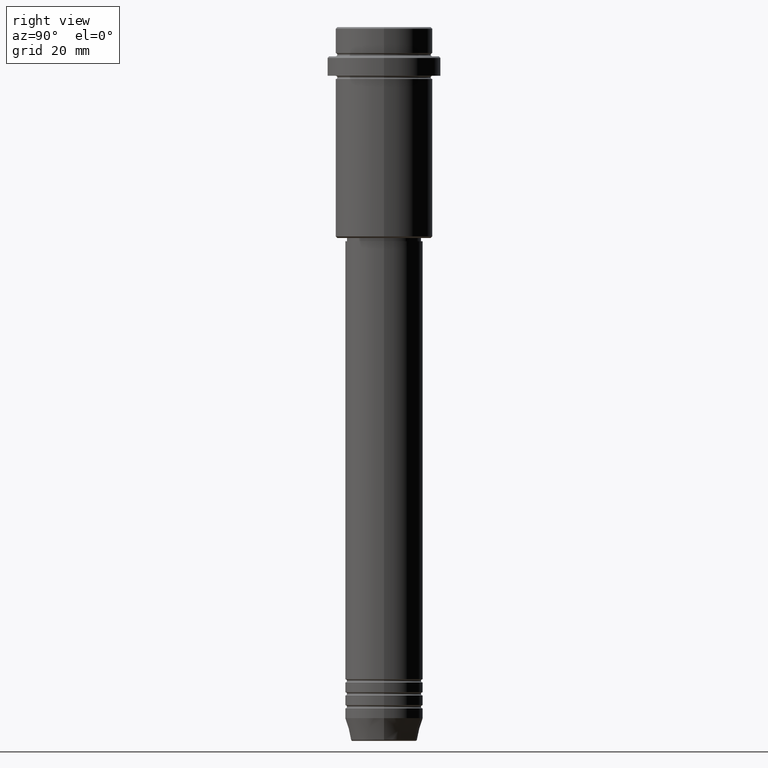
[diagram: clean part render]
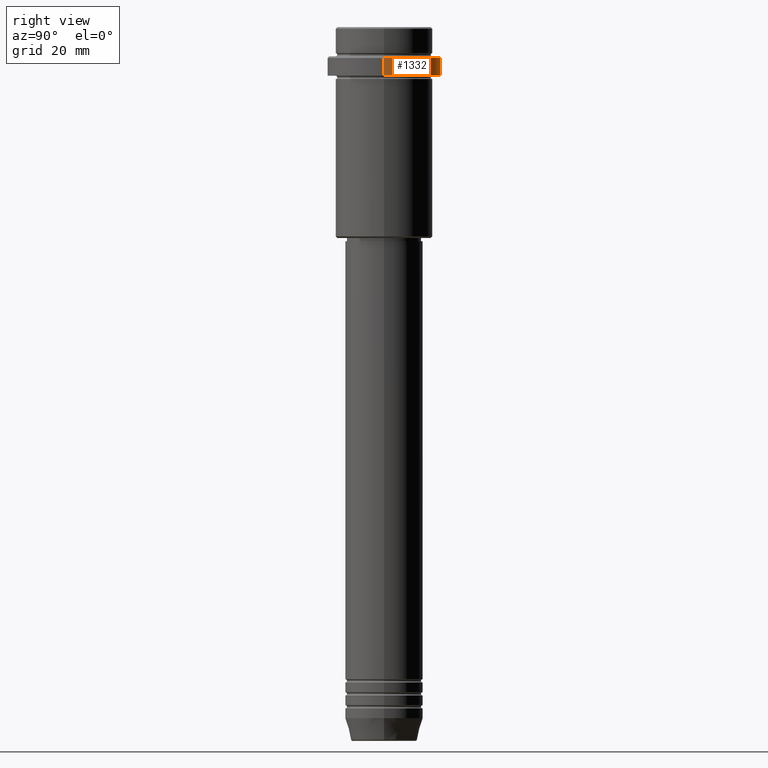
[diagram: same view with one face highlighted and labeled with its STEP entity id]
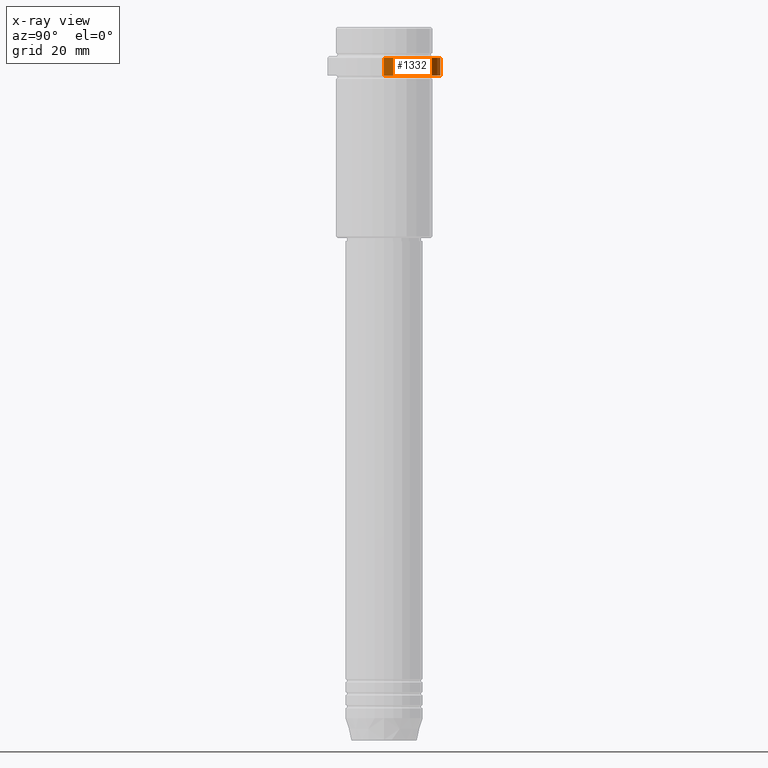
[diagram: x-ray of the same camera — body ghosted, the highlighted face saturated]
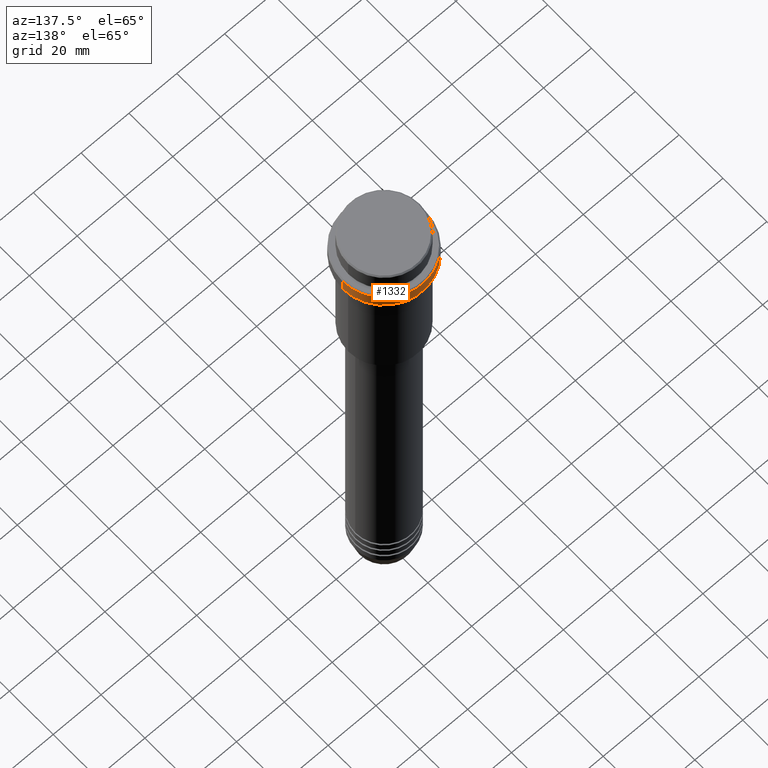
[diagram: same view with one face highlighted and labeled with its STEP entity id]
A machine part, right view. The second image highlights one B-rep face of the part: STEP entity #1332.
The next image is the same camera in x-ray: the body ghosted, the highlighted face saturated — about 0% of this face is hidden behind the body in this view.
A second angle (auxiliary view) of the same face is appended — the face is thin or edge-on in the first view.
In plain terms, the highlighted cylindrical surface (partial cylindrical patch) has radius 17.5 mm, axis along (-0, -0, 1).
Its self-contained STEP definition (entity closure, byte-faithful):
#1 = EDGE_LOOP ( 'NONE', ( #587, #1090, #1363, #336 ) ) ;
#34 = CIRCLE ( 'NONE', #50, 17.50000000000000000 ) ;
#50 = AXIS2_PLACEMENT_3D ( 'NONE', #691, #905, #126 ) ;
#86 = LINE ( 'NONE', #965, #118 ) ;
#111 = EDGE_CURVE ( 'NONE', #1373, #376, #86, .T. ) ;
#113 = VERTEX_POINT ( 'NONE', #635 ) ;
#118 = VECTOR ( 'NONE', #185, 1000.000000000000000 ) ;
#126 = DIRECTION ( 'NONE',  ( 1.000000000000000000, 0.000000000000000000, 0.000000000000000000 ) ) ;
#172 = CARTESIAN_POINT ( 'NONE',  ( -17.50000000000000000, 2.143131898507868248E-15, -15.00000000000000178 ) ) ;
#185 = DIRECTION ( 'NONE',  ( -0.000000000000000000, -0.000000000000000000, 1.000000000000000000 ) ) ;
#250 = FACE_OUTER_BOUND ( 'NONE', #1, .T. ) ;
#325 = AXIS2_PLACEMENT_3D ( 'NONE', #480, #1016, #1346 ) ;
#336 = ORIENTED_EDGE ( 'NONE', *, *, #903, .F. ) ;
#376 = VERTEX_POINT ( 'NONE', #985 ) ;
#383 = AXIS2_PLACEMENT_3D ( 'NONE', #997, #458, #590 ) ;
#384 = DIRECTION ( 'NONE',  ( -0.000000000000000000, -0.000000000000000000, 1.000000000000000000 ) ) ;
#458 = DIRECTION ( 'NONE',  ( -0.000000000000000000, -0.000000000000000000, 1.000000000000000000 ) ) ;
#480 = CARTESIAN_POINT ( 'NONE',  ( 0.000000000000000000, 0.000000000000000000, -15.00000000000000178 ) ) ;
#518 = CARTESIAN_POINT ( 'NONE',  ( 17.50000000000000000, 0.000000000000000000, -9.500000000000028422 ) ) ;
#587 = ORIENTED_EDGE ( 'NONE', *, *, #776, .T. ) ;
#590 = DIRECTION ( 'NONE',  ( 1.000000000000000000, 0.000000000000000000, 0.000000000000000000 ) ) ;
#624 = VERTEX_POINT ( 'NONE', #518 ) ;
#635 = CARTESIAN_POINT ( 'NONE',  ( 17.50000000000000000, 0.000000000000000000, -15.00000000000000178 ) ) ;
#691 = CARTESIAN_POINT ( 'NONE',  ( 0.000000000000000000, 0.000000000000000000, -9.500000000000028422 ) ) ;
#776 = EDGE_CURVE ( 'NONE', #113, #1373, #1053, .T. ) ;
#903 = EDGE_CURVE ( 'NONE', #113, #624, #1029, .T. ) ;
#905 = DIRECTION ( 'NONE',  ( 0.000000000000000000, 0.000000000000000000, -1.000000000000000000 ) ) ;
#965 = CARTESIAN_POINT ( 'NONE',  ( -17.50000000000000000, 2.143131898507868248E-15, 0.000000000000000000 ) ) ;
#985 = CARTESIAN_POINT ( 'NONE',  ( -17.50000000000000000, 2.143131898507868248E-15, -9.500000000000028422 ) ) ;
#997 = CARTESIAN_POINT ( 'NONE',  ( 0.000000000000000000, 0.000000000000000000, 0.000000000000000000 ) ) ;
#1014 = CYLINDRICAL_SURFACE ( 'NONE', #383, 17.50000000000000000 ) ;
#1016 = DIRECTION ( 'NONE',  ( -0.000000000000000000, -0.000000000000000000, 1.000000000000000000 ) ) ;
#1029 = LINE ( 'NONE', #1154, #1375 ) ;
#1053 = CIRCLE ( 'NONE', #325, 17.50000000000000000 ) ;
#1090 = ORIENTED_EDGE ( 'NONE', *, *, #111, .T. ) ;
#1154 = CARTESIAN_POINT ( 'NONE',  ( 17.50000000000000000, 0.000000000000000000, 0.000000000000000000 ) ) ;
#1331 = EDGE_CURVE ( 'NONE', #376, #624, #34, .T. ) ;
#1332 = ADVANCED_FACE ( 'NONE', ( #250 ), #1014, .T. ) ;
#1346 = DIRECTION ( 'NONE',  ( 1.000000000000000000, 0.000000000000000000, 0.000000000000000000 ) ) ;
#1363 = ORIENTED_EDGE ( 'NONE', *, *, #1331, .T. ) ;
#1373 = VERTEX_POINT ( 'NONE', #172 ) ;
#1375 = VECTOR ( 'NONE', #384, 1000.000000000000000 ) ;